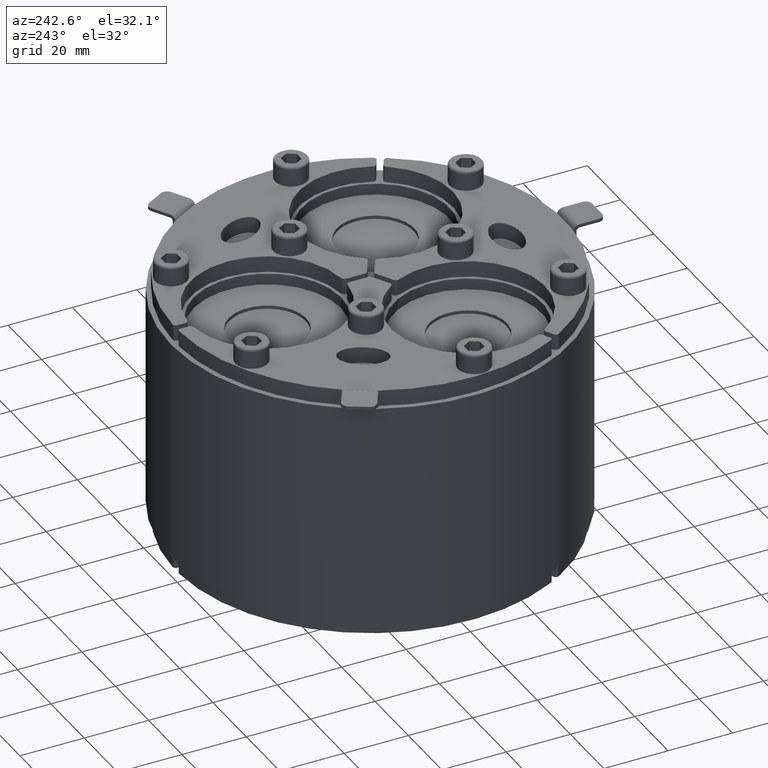
[diagram: clean part render]
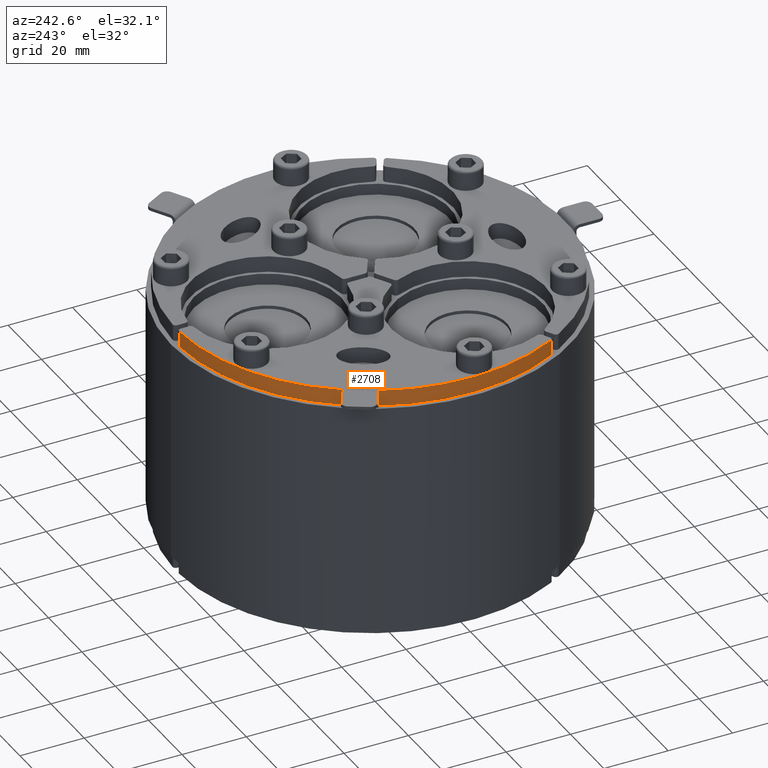
[diagram: same view with one face highlighted and labeled with its STEP entity id]
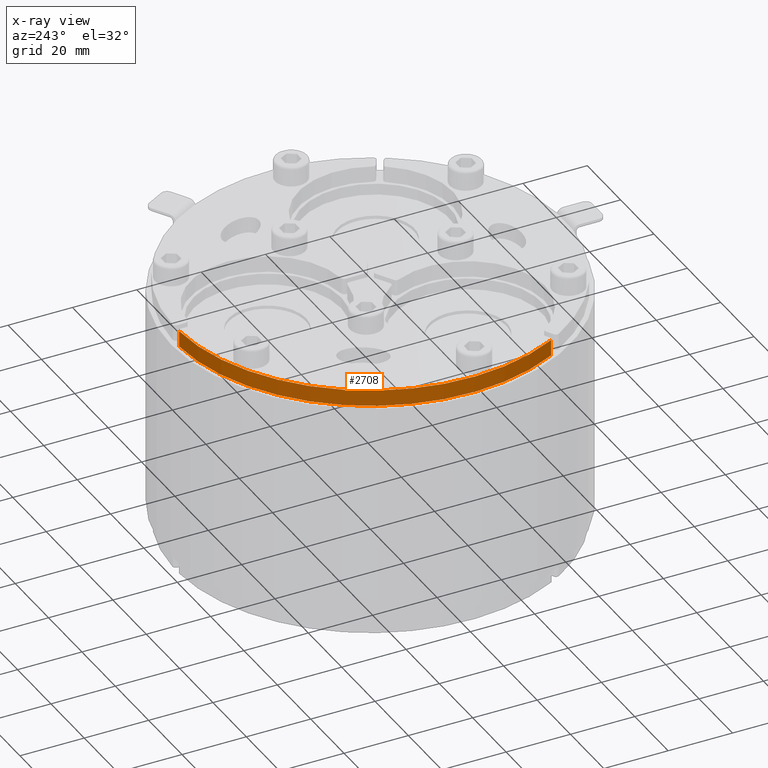
[diagram: x-ray of the same camera — body ghosted, the highlighted face saturated]
A machine part, auxiliary view. The second image highlights one B-rep face of the part: STEP entity #2708.
The next image is the same camera in x-ray: the body ghosted, the highlighted face saturated — about 0% of this face is hidden behind the body in this view.
In plain terms, the highlighted cylindrical surface (partial cylindrical patch) has radius 60.5 mm, axis along (0, -0, -1).
Its self-contained STEP definition (entity closure, byte-faithful):
#388=FACE_OUTER_BOUND('',#563,.T.);
#563=EDGE_LOOP('',(#2213,#2214,#2215,#2216));
#753=LINE('',#4595,#975);
#772=LINE('',#4674,#994);
#975=VECTOR('',#3705,10.);
#994=VECTOR('',#3788,10.);
#1156=CIRCLE('',#3143,60.5);
#1175=CIRCLE('',#3173,60.5);
#1333=VERTEX_POINT('',#4592);
#1334=VERTEX_POINT('',#4594);
#1338=VERTEX_POINT('',#4606);
#1361=VERTEX_POINT('',#4670);
#1629=EDGE_CURVE('',#1333,#1334,#753,.T.);
#1635=EDGE_CURVE('',#1334,#1338,#1156,.F.);
#1669=EDGE_CURVE('',#1338,#1361,#772,.T.);
#1670=EDGE_CURVE('',#1361,#1333,#1175,.T.);
#2213=ORIENTED_EDGE('',*,*,#1629,.F.);
#2214=ORIENTED_EDGE('',*,*,#1670,.F.);
#2215=ORIENTED_EDGE('',*,*,#1669,.F.);
#2216=ORIENTED_EDGE('',*,*,#1635,.F.);
#2596=CYLINDRICAL_SURFACE('',#3172,60.5);
#2708=ADVANCED_FACE('',(#388),#2596,.T.);
#3143=AXIS2_PLACEMENT_3D('',#4607,#3716,#3717);
#3172=AXIS2_PLACEMENT_3D('',#4675,#3789,#3790);
#3173=AXIS2_PLACEMENT_3D('',#4676,#3791,#3792);
#3705=DIRECTION('',(0.,0.,1.));
#3716=DIRECTION('center_axis',(0.,0.,-1.));
#3717=DIRECTION('ref_axis',(1.,0.,0.));
#3788=DIRECTION('',(0.,0.,-1.));
#3789=DIRECTION('center_axis',(0.,0.,-1.));
#3790=DIRECTION('ref_axis',(-0.866025403784438,0.5,0.));
#3791=DIRECTION('center_axis',(0.,0.,-1.));
#3792=DIRECTION('ref_axis',(1.,0.,0.));
#4592=CARTESIAN_POINT('',(-2.03361344537815,60.4658119630819,-5.));
#4594=CARTESIAN_POINT('',(-2.03361344537815,60.4658119630819,0.));
#4595=CARTESIAN_POINT('',(-2.03361344537815,60.4658119630819,0.));
#4606=CARTESIAN_POINT('',(-53.381735943171,-28.4717450763658,0.));
#4607=CARTESIAN_POINT('Origin',(0.,0.,0.));
#4670=CARTESIAN_POINT('',(-53.381735943171,-28.4717450763658,-5.));
#4674=CARTESIAN_POINT('',(-53.381735943171,-28.4717450763658,0.));
#4675=CARTESIAN_POINT('Origin',(0.,0.,0.));
#4676=CARTESIAN_POINT('Origin',(0.,0.,-5.));